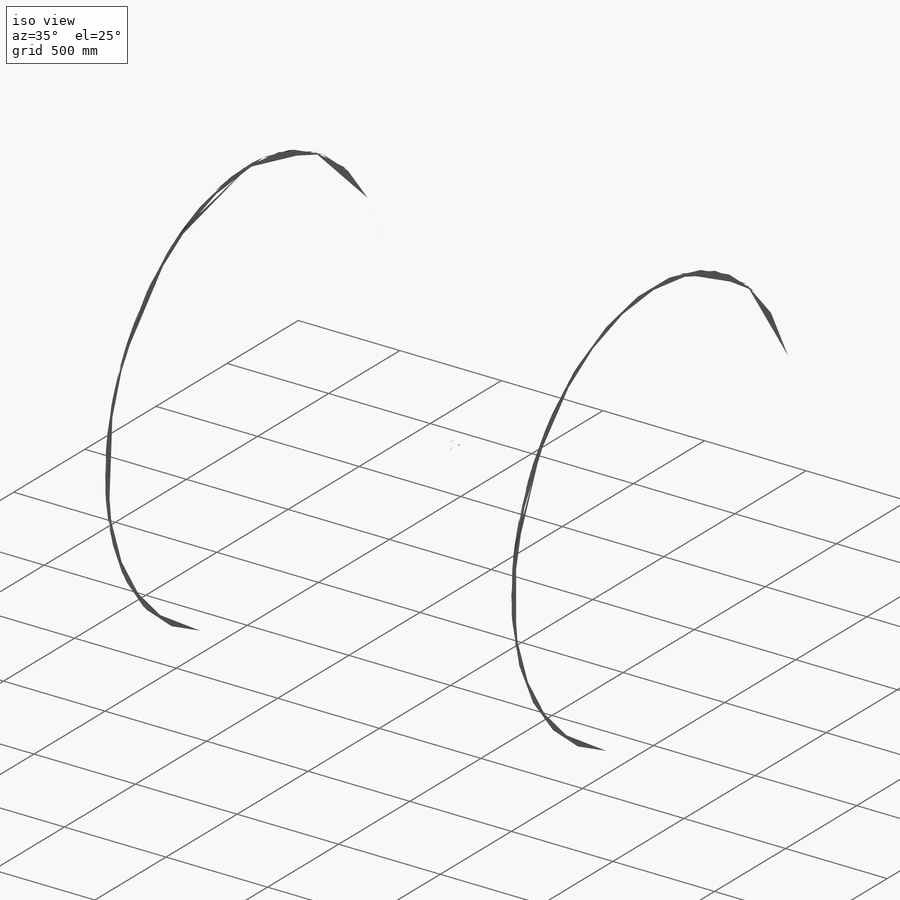
[diagram: iso view]
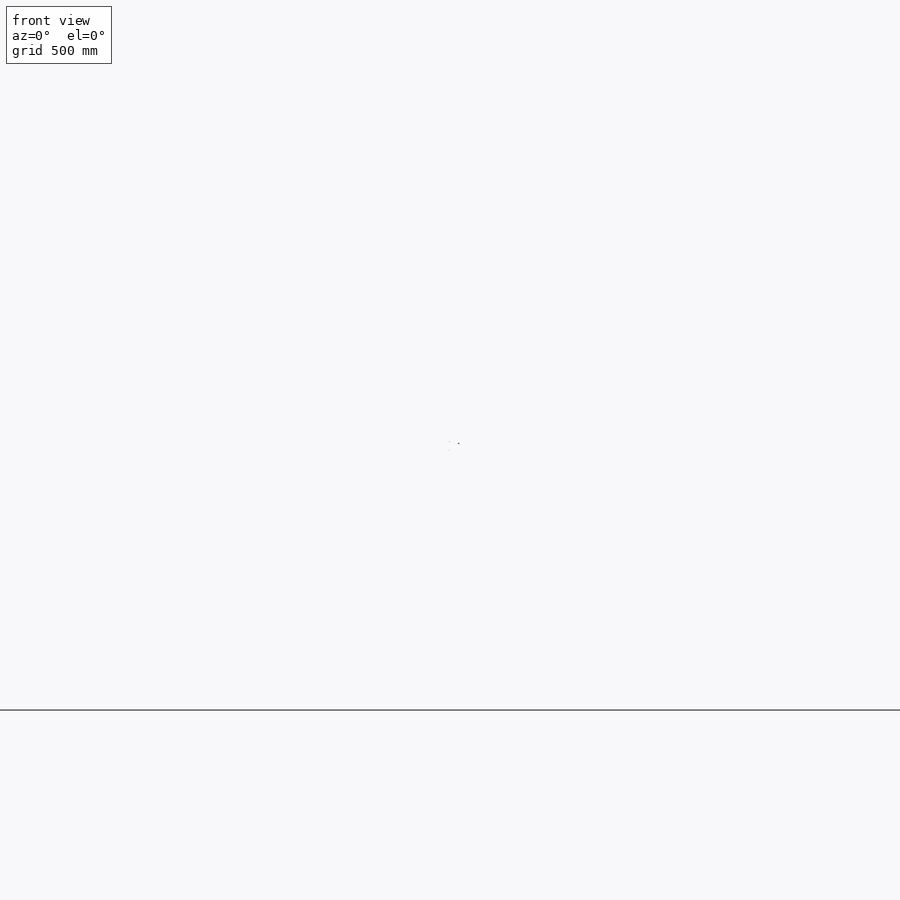
[diagram: front view]
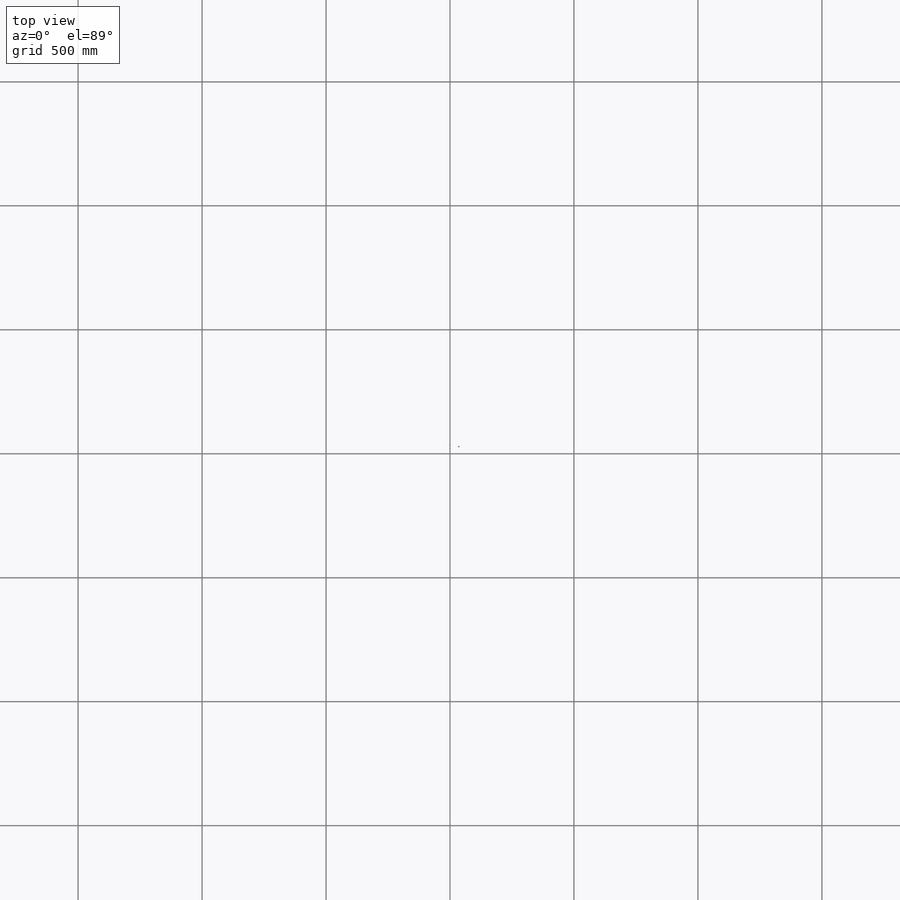
[diagram: top view]
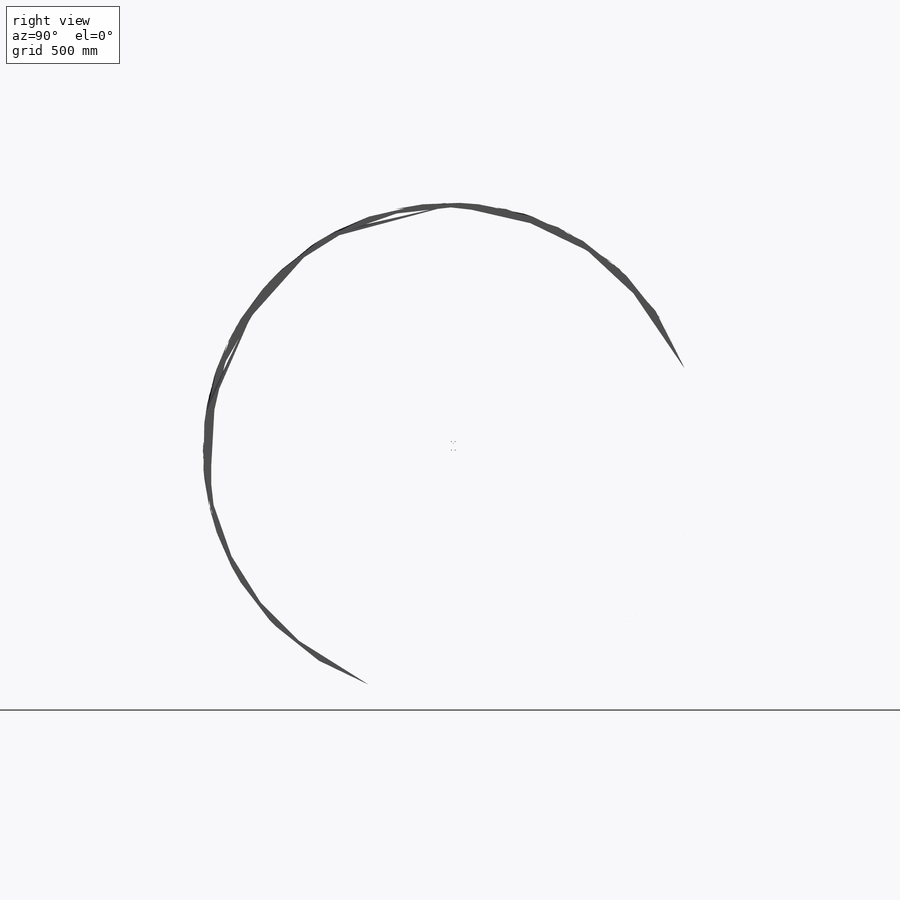
[diagram: right view]
SOLIDWORKS PART (.sldprt)
format: sldprt  version: not decoded by parser v0  size: 2,923,520 bytes
history: native  units: mm
features: sketch x23, fillet x17, extrude x15, cut_extrude x8, material x1, plane x1 (+12 scaffold rows collapsed)
feature tree (77):
  scaffold x12  (default folders/planes/origin — collapsed)
  material  "ABS"
  sketch  "Sketch1"  dims[D1=39.6875mm]
  extrude  "Boss-Extrude1"  Depth=31.75mm
  fillet  "Fillet1"  Radius=2.54mm
  sketch  "Sketch3"  dims[D1=~1.860206mm]
  cut_extrude  "Cut-Extrude1"  Depth=1.778mm
  sketch  "Sketch4"  dims[D1=~1.622553mm]
  extrude  "Boss-Extrude2"  Depth=1.524mm
  fillet  "Fillet2"  Radius=0.762mm
  fillet  "Fillet3"  Radius=0.762mm
  fillet  "Fillet4"  Radius=0.762mm
  fillet  "Fillet5"  Radius=0.762mm
  fillet  "Fillet6"  Radius=0.508mm
  fillet  "Fillet7"  Radius=0.508mm
  fillet  "Fillet8"  Radius=0.508mm
  fillet  "Fillet9"  Radius=0.508mm
  fillet  "Fillet10"  Radius=0.127mm
  sketch  "Sketch5"  dims[D1=0.0mm]
  extrude  "Boss-Extrude3"  Depth=0.254mm
  sketch  "Sketch6"  dims[D1=0.254mm]
  extrude  "Boss-Extrude4"  Depth=1.27mm
  sketch  "Sketch7"  dims[D1=~6.572826mm]
  extrude  "Boss-Extrude5"  Depth=1.016mm
  sketch  "Sketch8"  dims[D1=~5.391401mm]
  extrude  "Boss-Extrude6"  Depth=0.254mm
  sketch  "Sketch9"  dims[D1=~1.128625mm]
  cut_extrude  "Cut-Extrude2"  Depth=2.794mm
  sketch  "Sketch10"  dims[D1=21.59mm]
  extrude  "Boss-Extrude7"  Depth=2.794mm
  sketch  "Sketch11"  dims[D1=0.0mm D2=28.0]
  extrude  "Boss-Extrude8"  Depth=3.175mm
  sketch  "Sketch12"  dims[D1=0.0mm]
  extrude  "Boss-Extrude9"  Depth=0.254mm
  fillet  "Fillet11"  Radius=0.254mm
  sketch  "Sketch13"  dims[D1=~1.058816mm]
  cut_extrude  "Cut-Extrude3"  Depth=2.54mm
  fillet  "Fillet12"  Radius=0.0254mm
  sketch  "Sketch14"  dims[D1=0.0mm]
  extrude  "Boss-Extrude10"  Depth=0.127mm
  sketch  "Sketch15"  dims[D1=1.778mm]
  extrude  "Boss-Extrude11"  Depth=20.447mm
  sketch  "Sketch16"
  cut_extrude  "Cut-Extrude4"  Depth=20.447mm
  sketch  "Sketch17"  dims[D1=0.0mm]
  cut_extrude  "Cut-Extrude5"  Depth=20.447mm
  sketch  "Sketch18"  dims[D1=0.0mm]
  cut_extrude  "Cut-Extrude6"  Depth=20.447mm
  sketch  "Sketch19"  dims[D1=0.0mm]
  cut_extrude  "Cut-Extrude7"  Depth=20.447mm
  sketch  "Sketch20"  dims[D2=2.54mm D1=0.0mm]
  cut_extrude  "Cut-Extrude8"  Depth=5.207mm
  plane  "Plane1"
  sketch  "Sketch23"
  extrude  "Boss-Extrude12"  Depth=0.508mm
  sketch  "Sketch24"
  extrude  "Boss-Extrude13"  Depth=1.27mm
  sketch  "Sketch25"
  extrude  "Boss-Extrude14"  Depth=5.08mm
  sketch  "Sketch26"
  extrude  "Boss-Extrude15"  Depth=1.27mm
  fillet  "Fillet13"  Radius=0.0254mm
  fillet  "Fillet14"  Radius=0.0254mm
  fillet  "Fillet15"  Radius=0.0508mm
  fillet  "Fillet16"  Radius=0.254mm
  fillet  "Fillet17"  Radius=0.127mm
decode coverage: 58 of 63 modeling features carry decoded parameters
note: ~ marks probable driven/reference dimensions
note: suppression state not decoded; provenance and decode notes live in map.json
